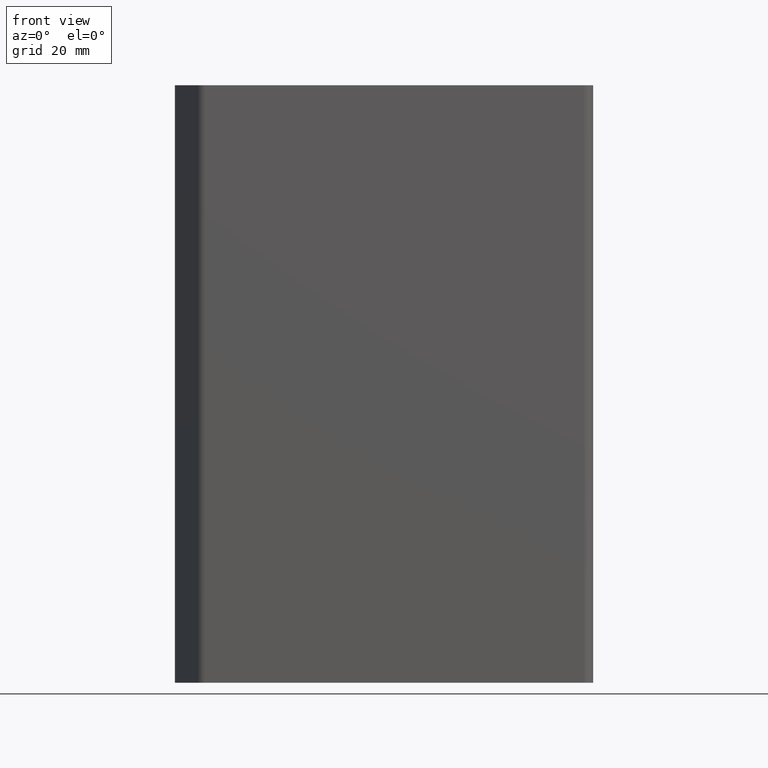
[diagram: clean part render]
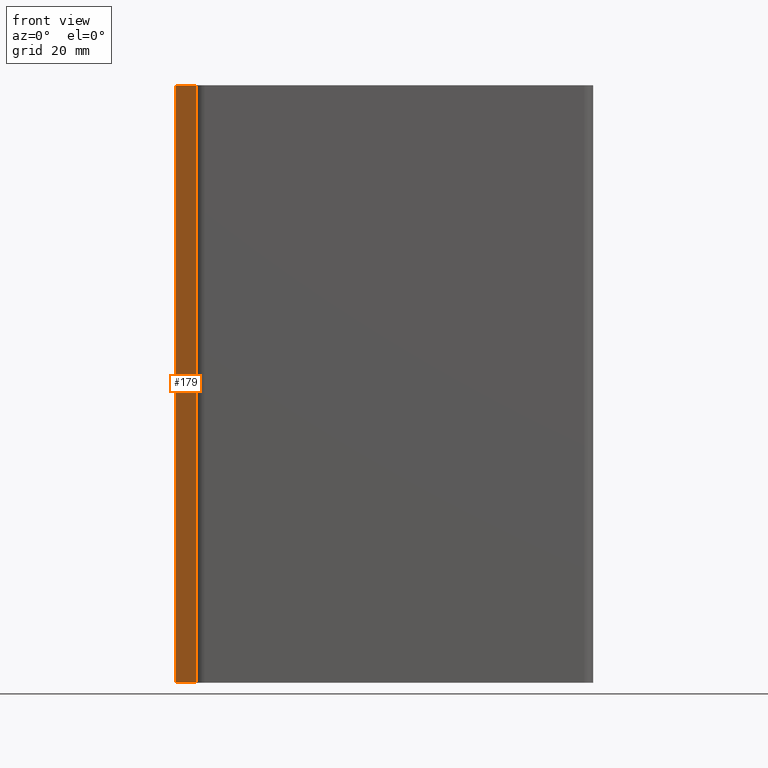
[diagram: same view with one face highlighted and labeled with its STEP entity id]
A machine part, front view. The second image highlights one B-rep face of the part: STEP entity #179.
In plain terms, the highlighted planar face has unit normal (-0.866, -0.5, 0).
Its self-contained STEP definition (entity closure, byte-faithful):
#33=FACE_OUTER_BOUND('',#43,.T.);
#43=EDGE_LOOP('',(#143,#144,#145,#146));
#59=LINE('',#308,#75);
#60=LINE('',#311,#76);
#61=LINE('',#313,#77);
#62=LINE('',#314,#78);
#75=VECTOR('',#253,10.);
#76=VECTOR('',#256,10.);
#77=VECTOR('',#257,10.);
#78=VECTOR('',#258,10.);
#91=VERTEX_POINT('',#304);
#92=VERTEX_POINT('',#306);
#93=VERTEX_POINT('',#310);
#94=VERTEX_POINT('',#312);
#113=EDGE_CURVE('',#91,#92,#59,.T.);
#114=EDGE_CURVE('',#91,#93,#60,.T.);
#115=EDGE_CURVE('',#94,#92,#61,.T.);
#116=EDGE_CURVE('',#93,#94,#62,.T.);
#143=ORIENTED_EDGE('',*,*,#114,.F.);
#144=ORIENTED_EDGE('',*,*,#113,.T.);
#145=ORIENTED_EDGE('',*,*,#115,.F.);
#146=ORIENTED_EDGE('',*,*,#116,.F.);
#170=PLANE('',#209);
#179=ADVANCED_FACE('',(#33),#170,.T.);
#209=AXIS2_PLACEMENT_3D('',#309,#254,#255);
#253=DIRECTION('',(0.,0.,1.));
#254=DIRECTION('center_axis',(-0.866025403784439,-0.5,0.));
#255=DIRECTION('ref_axis',(0.5,-0.866025403784439,0.));
#256=DIRECTION('',(-0.5,0.866025403784439,0.));
#257=DIRECTION('',(0.5,-0.866025403784439,0.));
#258=DIRECTION('',(0.,0.,1.));
#304=CARTESIAN_POINT('',(-66.1339746072337,1.4999998833337,0.));
#306=CARTESIAN_POINT('',(-66.1339746072337,1.4999998833337,200.));
#308=CARTESIAN_POINT('',(-66.1339746072337,1.4999998833337,0.));
#309=CARTESIAN_POINT('Origin',(-73.0621778264902,13.4999998642482,0.));
#310=CARTESIAN_POINT('',(-73.0621778264902,13.4999998642482,0.));
#311=CARTESIAN_POINT('',(-66.1339746072337,1.4999998833337,0.));
#312=CARTESIAN_POINT('',(-73.0621778264902,13.4999998642482,200.));
#313=CARTESIAN_POINT('',(-66.1339746072337,1.4999998833337,200.));
#314=CARTESIAN_POINT('',(-73.0621778264902,13.4999998642482,0.));